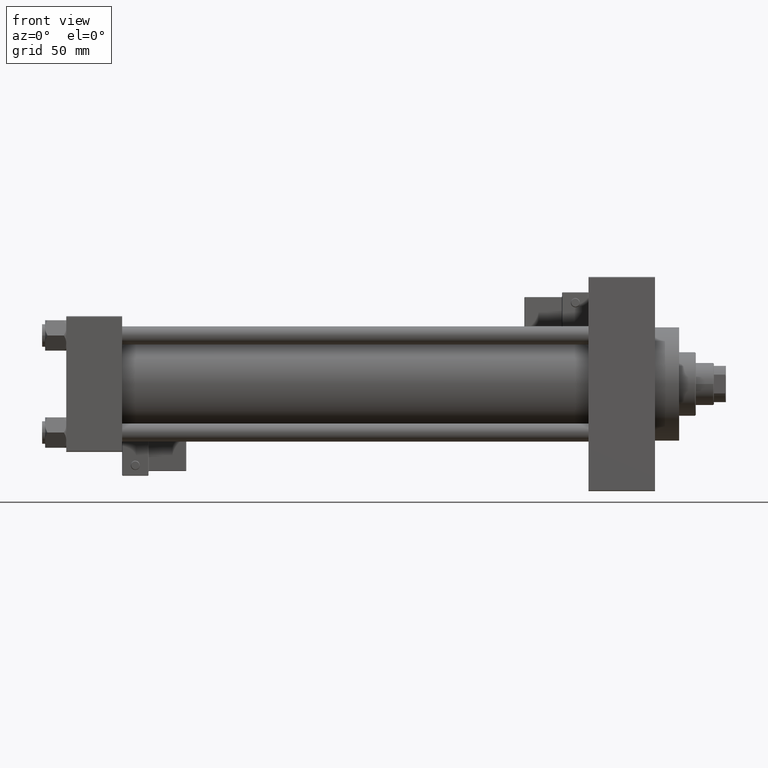
[diagram: clean part render]
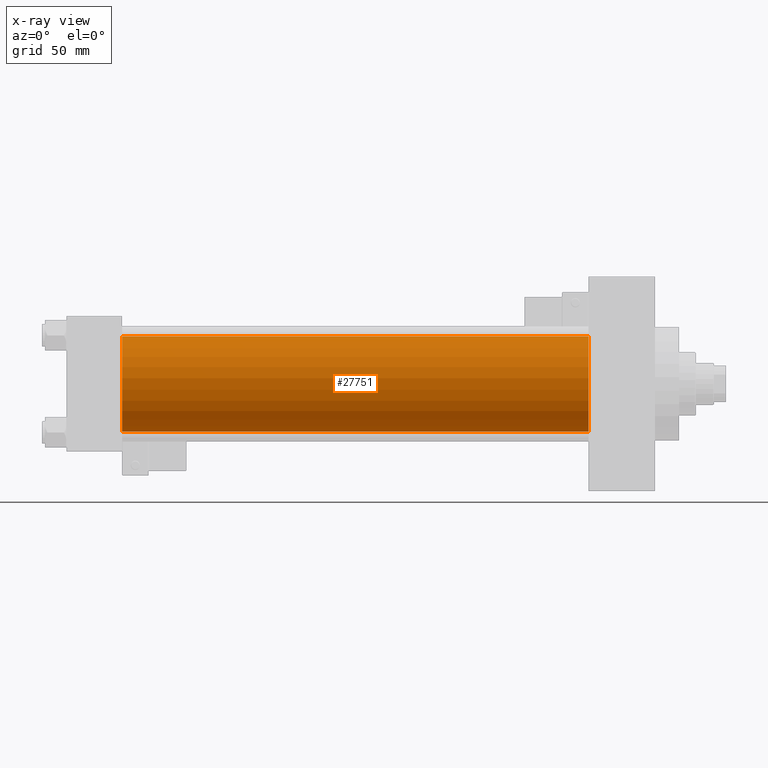
[diagram: x-ray — body ghosted, one internal face saturated and labeled with its STEP entity id]
A machine part, front view, then the same camera in x-ray: the body is ghosted and one INTERNAL B-rep face — a face not visible from any outside direction — is saturated and labeled: STEP entity #27751.
In plain terms, the highlighted cylindrical surface (partial cylindrical patch) has radius 31.5 mm, axis along (-1, -0, -0).
Its self-contained STEP definition (entity closure, byte-faithful):
#898 = DIRECTION ( 'NONE',  ( 0.000000000000000000, 0.000000000000000000, -1.000000000000000000 ) ) ;
#1253 = ORIENTED_EDGE ( 'NONE', *, *, #3071, .T. ) ;
#1874 = VERTEX_POINT ( 'NONE', #22859 ) ;
#2946 = ORIENTED_EDGE ( 'NONE', *, *, #44704, .T. ) ;
#3071 = EDGE_CURVE ( 'NONE', #1874, #46463, #20158, .T. ) ;
#4536 = AXIS2_PLACEMENT_3D ( 'NONE', #5379, #21533, #48599 ) ;
#5379 = CARTESIAN_POINT ( 'NONE',  ( 346.0000000000000000, -2.602085213965210642E-15, 0.000000000000000000 ) ) ;
#6358 = VECTOR ( 'NONE', #9211, 1000.000000000000000 ) ;
#7499 = CARTESIAN_POINT ( 'NONE',  ( 37.00000000000000000, 1.255552203348951850E-15, -31.50000000000000000 ) ) ;
#9211 = DIRECTION ( 'NONE',  ( -1.000000000000000000, -0.000000000000000000, -0.000000000000000000 ) ) ;
#10466 = EDGE_LOOP ( 'NONE', ( #2946, #1253, #44374, #41039 ) ) ;
#10872 = CARTESIAN_POINT ( 'NONE',  ( 37.00000000000000000, -2.602085213965210642E-15, 0.000000000000000000 ) ) ;
#10919 = EDGE_CURVE ( 'NONE', #11864, #28670, #36194, .T. ) ;
#11864 = VERTEX_POINT ( 'NONE', #50732 ) ;
#14742 = CARTESIAN_POINT ( 'NONE',  ( 37.00000000000000000, -2.602085213965210642E-15, 31.50000000000000000 ) ) ;
#15860 = AXIS2_PLACEMENT_3D ( 'NONE', #36569, #45148, #898 ) ;
#16669 = DIRECTION ( 'NONE',  ( -1.000000000000000000, -0.000000000000000000, -0.000000000000000000 ) ) ;
#18691 = DIRECTION ( 'NONE',  ( 1.000000000000000000, 0.000000000000000000, 0.000000000000000000 ) ) ;
#20158 = LINE ( 'NONE', #25096, #6358 ) ;
#21296 = AXIS2_PLACEMENT_3D ( 'NONE', #10872, #18691, #50435 ) ;
#21533 = DIRECTION ( 'NONE',  ( -1.000000000000000000, -0.000000000000000000, -0.000000000000000000 ) ) ;
#21794 = CYLINDRICAL_SURFACE ( 'NONE', #4536, 31.50000000000000000 ) ;
#22859 = CARTESIAN_POINT ( 'NONE',  ( 346.0000000000000000, 1.255552203348951850E-15, -31.50000000000000000 ) ) ;
#25096 = CARTESIAN_POINT ( 'NONE',  ( 346.0000000000000000, 1.255552203348951850E-15, -31.50000000000000000 ) ) ;
#27751 = ADVANCED_FACE ( 'NONE', ( #36631 ), #21794, .F. ) ;
#28670 = VERTEX_POINT ( 'NONE', #14742 ) ;
#31058 = EDGE_CURVE ( 'NONE', #28670, #46463, #37908, .T. ) ;
#36194 = LINE ( 'NONE', #40606, #47295 ) ;
#36569 = CARTESIAN_POINT ( 'NONE',  ( 346.0000000000000000, -2.602085213965210642E-15, 0.000000000000000000 ) ) ;
#36631 = FACE_OUTER_BOUND ( 'NONE', #10466, .T. ) ;
#37908 = CIRCLE ( 'NONE', #21296, 31.50000000000000000 ) ;
#40606 = CARTESIAN_POINT ( 'NONE',  ( 346.0000000000000000, -2.602085213965210642E-15, 31.50000000000000000 ) ) ;
#40787 = CIRCLE ( 'NONE', #15860, 31.50000000000000000 ) ;
#41039 = ORIENTED_EDGE ( 'NONE', *, *, #10919, .F. ) ;
#44374 = ORIENTED_EDGE ( 'NONE', *, *, #31058, .F. ) ;
#44704 = EDGE_CURVE ( 'NONE', #11864, #1874, #40787, .T. ) ;
#45148 = DIRECTION ( 'NONE',  ( 1.000000000000000000, 0.000000000000000000, 0.000000000000000000 ) ) ;
#46463 = VERTEX_POINT ( 'NONE', #7499 ) ;
#47295 = VECTOR ( 'NONE', #16669, 1000.000000000000000 ) ;
#48599 = DIRECTION ( 'NONE',  ( 0.000000000000000000, 0.000000000000000000, 1.000000000000000000 ) ) ;
#50435 = DIRECTION ( 'NONE',  ( 0.000000000000000000, 0.000000000000000000, -1.000000000000000000 ) ) ;
#50732 = CARTESIAN_POINT ( 'NONE',  ( 346.0000000000000000, -2.602085213965210642E-15, 31.50000000000000000 ) ) ;